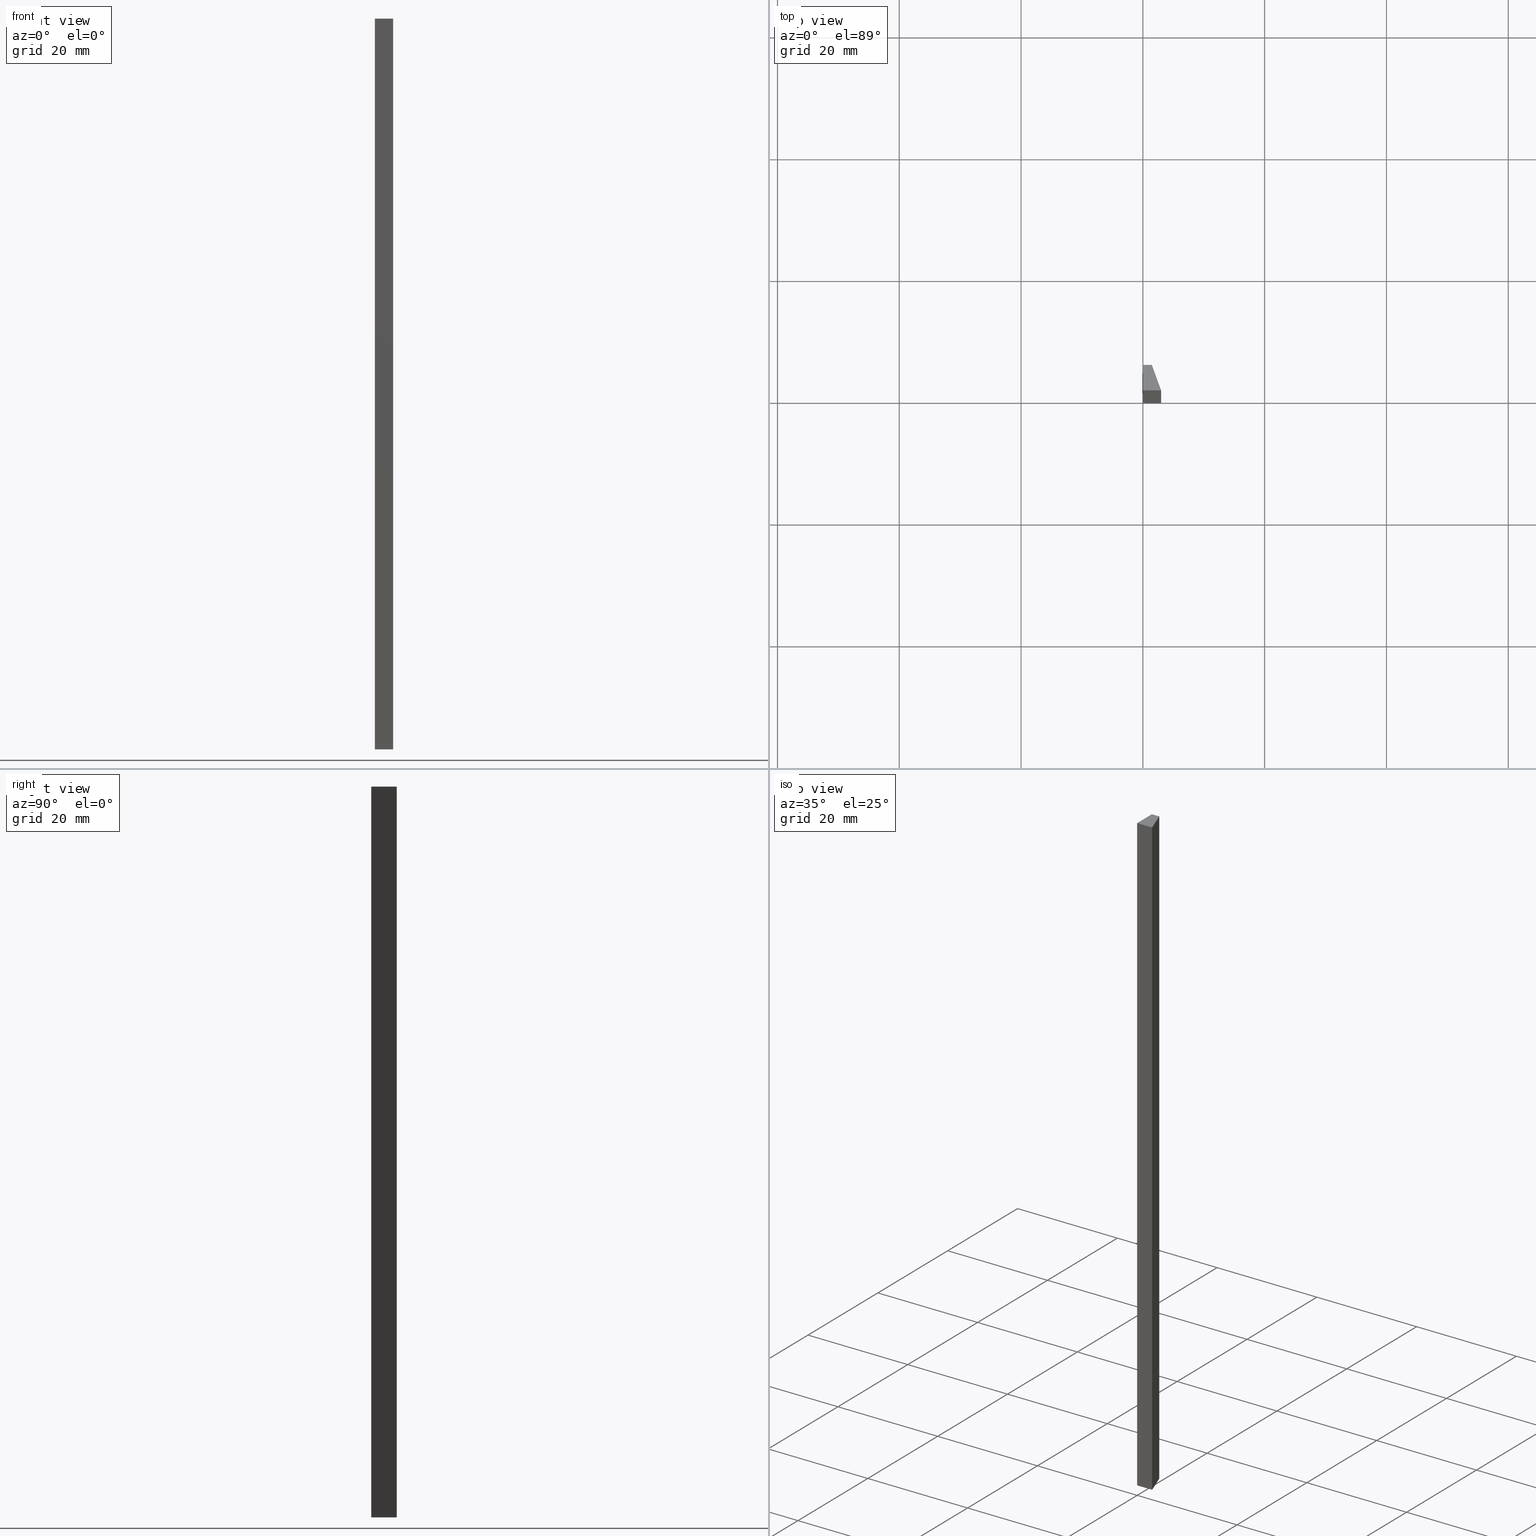
[diagram: canonical four-view strip — front | top / right | iso, engineering-drawing reading convention]
A machine part, canonical four-view strip (front | top / right | iso — engineering-drawing reading convention). The complete STEP part file that produces these views, byte-faithful:
ISO-10303-21;
HEADER;
/* Generated by software containing ST-Developer
 * from STEP Tools, Inc. (www.steptools.com) 
 */

FILE_DESCRIPTION(
/* description */ (''),
/* implementation_level */ '2;1');

FILE_NAME(
/* name */ 'E_3_01_06_06_00_WKZ-0060.stp',
/* time_stamp */ '2025-11-24T11:04:48+01:00',
/* author */ ('d.fischer'),
/* organization */ (''),
/* preprocessor_version */ 'ST-DEVELOPER v20',
/* originating_system */ 'Autodesk Inventor 2025',
/* authorisation */ '');

FILE_SCHEMA (('AUTOMOTIVE_DESIGN { 1 0 10303 214 3 1 1 }'));
ENDSEC;

DATA;
#10=MECHANICAL_DESIGN_GEOMETRIC_PRESENTATION_REPRESENTATION('',(#14,#15),
#193);
#11=SHAPE_REPRESENTATION_RELATIONSHIP('SRR','None',#200,#12);
#12=ADVANCED_BREP_SHAPE_REPRESENTATION('',(#13),#192);
#13=MANIFOLD_SOLID_BREP('Volumenk\X\F6rper1',#108);
#14=STYLED_ITEM('',(#210),#106);
#15=STYLED_ITEM('',(#209),#13);
#16=FACE_OUTER_BOUND('',#22,.T.);
#17=FACE_OUTER_BOUND('',#23,.T.);
#18=FACE_OUTER_BOUND('',#24,.T.);
#19=FACE_OUTER_BOUND('',#25,.T.);
#20=FACE_OUTER_BOUND('',#26,.T.);
#21=FACE_OUTER_BOUND('',#27,.T.);
#22=EDGE_LOOP('',(#72,#73,#74,#75));
#23=EDGE_LOOP('',(#76,#77,#78,#79));
#24=EDGE_LOOP('',(#80,#81,#82,#83));
#25=EDGE_LOOP('',(#84,#85,#86,#87));
#26=EDGE_LOOP('',(#88,#89,#90,#91));
#27=EDGE_LOOP('',(#92,#93,#94,#95));
#28=LINE('',#167,#40);
#29=LINE('',#169,#41);
#30=LINE('',#171,#42);
#31=LINE('',#172,#43);
#32=LINE('',#176,#44);
#33=LINE('',#177,#45);
#34=LINE('',#178,#46);
#35=LINE('',#181,#47);
#36=LINE('',#182,#48);
#37=LINE('',#185,#49);
#38=LINE('',#186,#50);
#39=LINE('',#188,#51);
#40=VECTOR('',#141,10.);
#41=VECTOR('',#142,10.);
#42=VECTOR('',#143,10.);
#43=VECTOR('',#144,10.);
#44=VECTOR('',#147,10.);
#45=VECTOR('',#148,10.);
#46=VECTOR('',#149,10.);
#47=VECTOR('',#152,10.);
#48=VECTOR('',#153,10.);
#49=VECTOR('',#156,10.);
#50=VECTOR('',#157,10.);
#51=VECTOR('',#160,10.);
#52=VERTEX_POINT('',#165);
#53=VERTEX_POINT('',#166);
#54=VERTEX_POINT('',#168);
#55=VERTEX_POINT('',#170);
#56=VERTEX_POINT('',#174);
#57=VERTEX_POINT('',#175);
#58=VERTEX_POINT('',#180);
#59=VERTEX_POINT('',#184);
#60=EDGE_CURVE('',#52,#53,#28,.T.);
#61=EDGE_CURVE('',#54,#52,#29,.T.);
#62=EDGE_CURVE('',#55,#54,#30,.T.);
#63=EDGE_CURVE('',#53,#55,#31,.T.);
#64=EDGE_CURVE('',#56,#57,#32,.T.);
#65=EDGE_CURVE('',#57,#55,#33,.T.);
#66=EDGE_CURVE('',#56,#54,#34,.T.);
#67=EDGE_CURVE('',#57,#58,#35,.T.);
#68=EDGE_CURVE('',#58,#53,#36,.T.);
#69=EDGE_CURVE('',#58,#59,#37,.T.);
#70=EDGE_CURVE('',#52,#59,#38,.T.);
#71=EDGE_CURVE('',#59,#56,#39,.T.);
#72=ORIENTED_EDGE('',*,*,#60,.F.);
#73=ORIENTED_EDGE('',*,*,#61,.F.);
#74=ORIENTED_EDGE('',*,*,#62,.F.);
#75=ORIENTED_EDGE('',*,*,#63,.F.);
#76=ORIENTED_EDGE('',*,*,#64,.T.);
#77=ORIENTED_EDGE('',*,*,#65,.T.);
#78=ORIENTED_EDGE('',*,*,#62,.T.);
#79=ORIENTED_EDGE('',*,*,#66,.F.);
#80=ORIENTED_EDGE('',*,*,#67,.T.);
#81=ORIENTED_EDGE('',*,*,#68,.T.);
#82=ORIENTED_EDGE('',*,*,#63,.T.);
#83=ORIENTED_EDGE('',*,*,#65,.F.);
#84=ORIENTED_EDGE('',*,*,#69,.T.);
#85=ORIENTED_EDGE('',*,*,#70,.F.);
#86=ORIENTED_EDGE('',*,*,#60,.T.);
#87=ORIENTED_EDGE('',*,*,#68,.F.);
#88=ORIENTED_EDGE('',*,*,#71,.T.);
#89=ORIENTED_EDGE('',*,*,#66,.T.);
#90=ORIENTED_EDGE('',*,*,#61,.T.);
#91=ORIENTED_EDGE('',*,*,#70,.T.);
#92=ORIENTED_EDGE('',*,*,#64,.F.);
#93=ORIENTED_EDGE('',*,*,#71,.F.);
#94=ORIENTED_EDGE('',*,*,#69,.F.);
#95=ORIENTED_EDGE('',*,*,#67,.F.);
#96=PLANE('',#131);
#97=PLANE('',#132);
#98=PLANE('',#133);
#99=PLANE('',#134);
#100=PLANE('',#135);
#101=PLANE('',#136);
#102=ADVANCED_FACE('',(#16),#96,.F.);
#103=ADVANCED_FACE('',(#17),#97,.T.);
#104=ADVANCED_FACE('',(#18),#98,.T.);
#105=ADVANCED_FACE('',(#19),#99,.T.);
#106=ADVANCED_FACE('',(#20),#100,.T.);
#107=ADVANCED_FACE('',(#21),#101,.T.);
#108=CLOSED_SHELL('',(#102,#103,#104,#105,#106,#107));
#109=DERIVED_UNIT_ELEMENT(#112,1.);
#110=DERIVED_UNIT_ELEMENT(#195,-3.);
#111=DIMENSIONAL_EXPONENTS(0.,1.,0.,0.,0.,0.,0.);
#112=(
CONVERSION_BASED_UNIT('gram',#114)
MASS_UNIT()
NAMED_UNIT(#111)
);
#113=(
MASS_UNIT()
NAMED_UNIT(*)
SI_UNIT(.KILO.,.GRAM.)
);
#114=MASS_MEASURE_WITH_UNIT(MASS_MEASURE(0.001),#113);
#115=DERIVED_UNIT((#109,#110));
#116=MEASURE_REPRESENTATION_ITEM('density measure',
POSITIVE_RATIO_MEASURE(8.03),#115);
#117=PROPERTY_DEFINITION_REPRESENTATION(#122,#119);
#118=PROPERTY_DEFINITION_REPRESENTATION(#123,#120);
#119=REPRESENTATION('material name',(#121),#192);
#120=REPRESENTATION('density',(#116),#192);
#121=DESCRIPTIVE_REPRESENTATION_ITEM('1.4301','1.4301');
#122=PROPERTY_DEFINITION('material property','material name',#202);
#123=PROPERTY_DEFINITION('material property','density of part',#202);
#124=DATE_TIME_ROLE('creation_date');
#125=APPLIED_DATE_AND_TIME_ASSIGNMENT(#126,#124,(#202));
#126=DATE_AND_TIME(#127,#128);
#127=CALENDAR_DATE(2011,20,10);
#128=LOCAL_TIME(0,0,0.,#129);
#129=COORDINATED_UNIVERSAL_TIME_OFFSET(0,0,.BEHIND.);
#130=AXIS2_PLACEMENT_3D('',#163,#137,#138);
#131=AXIS2_PLACEMENT_3D('',#164,#139,#140);
#132=AXIS2_PLACEMENT_3D('',#173,#145,#146);
#133=AXIS2_PLACEMENT_3D('',#179,#150,#151);
#134=AXIS2_PLACEMENT_3D('',#183,#154,#155);
#135=AXIS2_PLACEMENT_3D('',#187,#158,#159);
#136=AXIS2_PLACEMENT_3D('',#189,#161,#162);
#137=DIRECTION('axis',(0.,0.,1.));
#138=DIRECTION('refdir',(1.,0.,0.));
#139=DIRECTION('center_axis',(0.,0.,1.));
#140=DIRECTION('ref_axis',(1.,0.,0.));
#141=DIRECTION('',(-0.342020143325669,0.939692620785908,0.));
#142=DIRECTION('',(1.,-3.70074341541719E-16,0.));
#143=DIRECTION('',(1.98254111540207E-16,-1.,0.));
#144=DIRECTION('',(-1.,3.77286803558066E-16,0.));
#145=DIRECTION('center_axis',(-1.,-1.98254111540207E-16,0.));
#146=DIRECTION('ref_axis',(0.,0.,1.));
#147=DIRECTION('',(-1.98254111540207E-16,1.,0.));
#148=DIRECTION('',(0.,0.,-1.));
#149=DIRECTION('',(0.,0.,-1.));
#150=DIRECTION('center_axis',(3.77286803558066E-16,1.,0.));
#151=DIRECTION('ref_axis',(0.,0.,1.));
#152=DIRECTION('',(1.,-3.77286803558066E-16,0.));
#153=DIRECTION('',(0.,0.,-1.));
#154=DIRECTION('center_axis',(0.939692620785908,0.342020143325669,0.));
#155=DIRECTION('ref_axis',(0.,0.,-1.));
#156=DIRECTION('',(0.342020143325669,-0.939692620785908,0.));
#157=DIRECTION('',(0.,0.,1.));
#158=DIRECTION('center_axis',(-3.70074341541719E-16,-1.,0.));
#159=DIRECTION('ref_axis',(0.,0.,-1.));
#160=DIRECTION('',(-1.,3.70074341541719E-16,0.));
#161=DIRECTION('center_axis',(0.,0.,1.));
#162=DIRECTION('ref_axis',(1.,0.,0.));
#163=CARTESIAN_POINT('',(0.,0.,0.));
#164=CARTESIAN_POINT('Origin',(1.1852179151202,1.8557074181097,-60.));
#165=CARTESIAN_POINT('',(3.,-1.11022302462516E-15,-60.));
#166=CARTESIAN_POINT('',(1.47132501608195,4.2,-60.));
#167=CARTESIAN_POINT('',(1.47132501608195,4.2,-60.));
#168=CARTESIAN_POINT('',(1.94289029309402E-15,0.,-60.));
#169=CARTESIAN_POINT('',(3.,-1.11022302462516E-15,-60.));
#170=CARTESIAN_POINT('',(1.11022302462516E-15,4.2,-60.));
#171=CARTESIAN_POINT('',(1.94289029309402E-15,0.,-60.));
#172=CARTESIAN_POINT('',(1.11022302462516E-15,4.2,-60.));
#173=CARTESIAN_POINT('Origin',(1.94289029309402E-15,0.,0.));
#174=CARTESIAN_POINT('',(1.94289029309402E-15,0.,60.));
#175=CARTESIAN_POINT('',(1.11022302462516E-15,4.2,60.));
#176=CARTESIAN_POINT('',(1.94289029309402E-15,0.,60.));
#177=CARTESIAN_POINT('',(1.11022302462516E-15,4.2,0.));
#178=CARTESIAN_POINT('',(1.94289029309402E-15,0.,0.));
#179=CARTESIAN_POINT('Origin',(1.11022302462516E-15,4.2,0.));
#180=CARTESIAN_POINT('',(1.47132501608195,4.2,60.));
#181=CARTESIAN_POINT('',(1.11022302462516E-15,4.2,60.));
#182=CARTESIAN_POINT('',(1.47132501608195,4.2,0.));
#183=CARTESIAN_POINT('Origin',(1.47132501608195,4.2,0.));
#184=CARTESIAN_POINT('',(3.,-1.11022302462516E-15,60.));
#185=CARTESIAN_POINT('',(1.47132501608195,4.2,60.));
#186=CARTESIAN_POINT('',(3.,-1.11022302462516E-15,0.));
#187=CARTESIAN_POINT('Origin',(3.,-1.11022302462516E-15,0.));
#188=CARTESIAN_POINT('',(3.,-1.11022302462516E-15,60.));
#189=CARTESIAN_POINT('Origin',(1.1852179151202,1.8557074181097,60.));
#190=UNCERTAINTY_MEASURE_WITH_UNIT(LENGTH_MEASURE(0.01),#194,
'DISTANCE_ACCURACY_VALUE',
'Maximum model space distance between geometric entities at asserted c
onnectivities');
#191=UNCERTAINTY_MEASURE_WITH_UNIT(LENGTH_MEASURE(0.01),#194,
'DISTANCE_ACCURACY_VALUE',
'Maximum model space distance between geometric entities at asserted c
onnectivities');
#192=(
GEOMETRIC_REPRESENTATION_CONTEXT(3)
GLOBAL_UNCERTAINTY_ASSIGNED_CONTEXT((#190))
GLOBAL_UNIT_ASSIGNED_CONTEXT((#194,#196,#197))
REPRESENTATION_CONTEXT('','3D')
);
#193=(
GEOMETRIC_REPRESENTATION_CONTEXT(3)
GLOBAL_UNCERTAINTY_ASSIGNED_CONTEXT((#191))
GLOBAL_UNIT_ASSIGNED_CONTEXT((#194,#196,#197))
REPRESENTATION_CONTEXT('','3D')
);
#194=(
LENGTH_UNIT()
NAMED_UNIT(*)
SI_UNIT(.MILLI.,.METRE.)
);
#195=(
LENGTH_UNIT()
NAMED_UNIT(*)
SI_UNIT(.CENTI.,.METRE.)
);
#196=(
NAMED_UNIT(*)
PLANE_ANGLE_UNIT()
SI_UNIT($,.RADIAN.)
);
#197=(
NAMED_UNIT(*)
SI_UNIT($,.STERADIAN.)
SOLID_ANGLE_UNIT()
);
#198=SHAPE_DEFINITION_REPRESENTATION(#199,#200);
#199=PRODUCT_DEFINITION_SHAPE('',$,#202);
#200=SHAPE_REPRESENTATION('',(#130),#192);
#201=PRODUCT_DEFINITION_CONTEXT('part definition',#206,'design');
#202=PRODUCT_DEFINITION('WKZ-0060','E_3_01_06_06_00_WKZ-0060',#203,#201);
#203=PRODUCT_DEFINITION_FORMATION('',$,#208);
#204=PRODUCT_RELATED_PRODUCT_CATEGORY('E_3_01_06_06_00_WKZ-0060',
'E_3_01_06_06_00_WKZ-0060',(#208));
#205=APPLICATION_PROTOCOL_DEFINITION('international standard',
'automotive_design',2009,#206);
#206=APPLICATION_CONTEXT(
'Core Data for Automotive Mechanical Design Process');
#207=PRODUCT_CONTEXT('part definition',#206,'mechanical');
#208=PRODUCT('WKZ-0060','E_3_01_06_06_00_WKZ-0060',$,(#207));
#209=PRESENTATION_STYLE_ASSIGNMENT((#211));
#210=PRESENTATION_STYLE_ASSIGNMENT((#212));
#211=SURFACE_STYLE_USAGE(.BOTH.,#215);
#212=SURFACE_STYLE_USAGE(.BOTH.,#216);
#213=SURFACE_STYLE_RENDERING_WITH_PROPERTIES($,#223,(#214));
#214=SURFACE_STYLE_TRANSPARENT(0.);
#215=SURFACE_SIDE_STYLE('',(#217,#213));
#216=SURFACE_SIDE_STYLE('',(#218));
#217=SURFACE_STYLE_FILL_AREA(#219);
#218=SURFACE_STYLE_FILL_AREA(#220);
#219=FILL_AREA_STYLE('',(#221));
#220=FILL_AREA_STYLE('',(#222));
#221=FILL_AREA_STYLE_COLOUR('',#223);
#222=FILL_AREA_STYLE_COLOUR('',#224);
#223=COLOUR_RGB('',0.92156862745098,0.92156862745098,0.92156862745098);
#224=COLOUR_RGB('',0.16078431372549,0.16078431372549,0.16078431372549);
ENDSEC;
END-ISO-10303-21;
